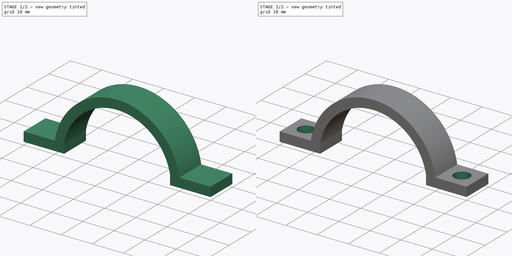
[diagram: build sequence overview — one tinted view per stage of 2, left to right]
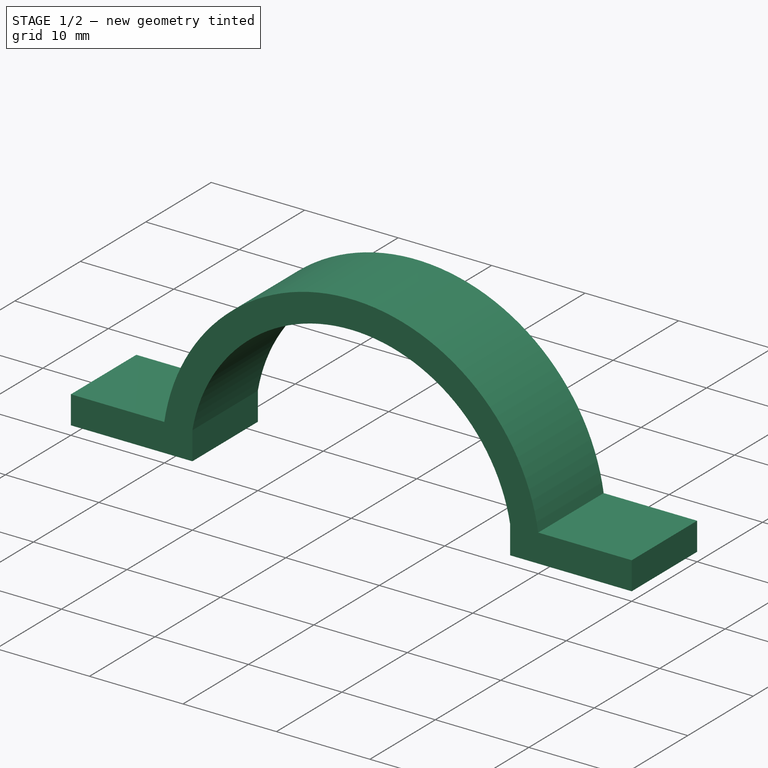
[diagram: stage 1 of 2 — iso view after this stage's code; geometry added in this stage tinted green]
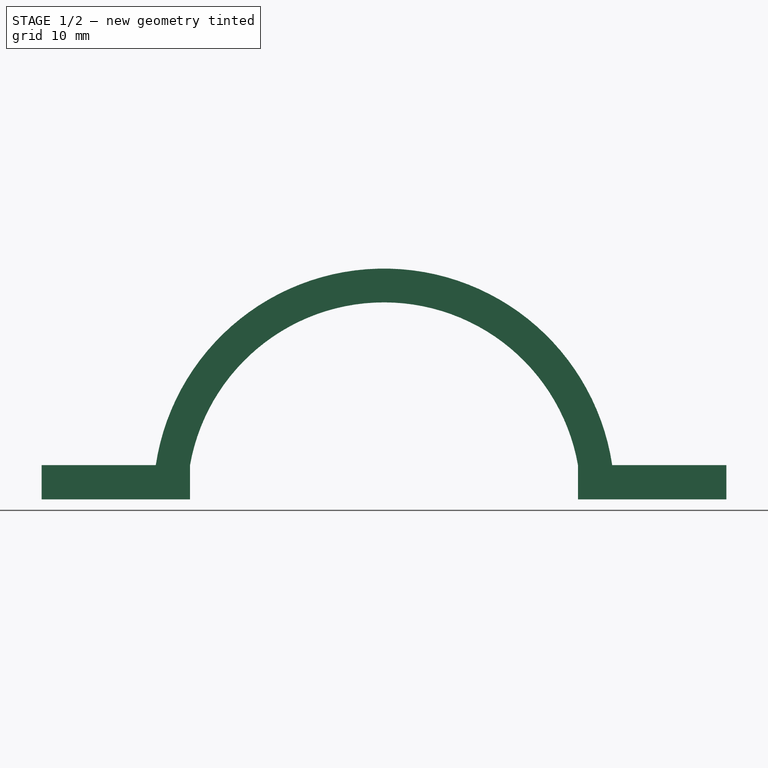
[diagram: stage 1 of 2 — front view after this stage's code; geometry added in this stage tinted green]
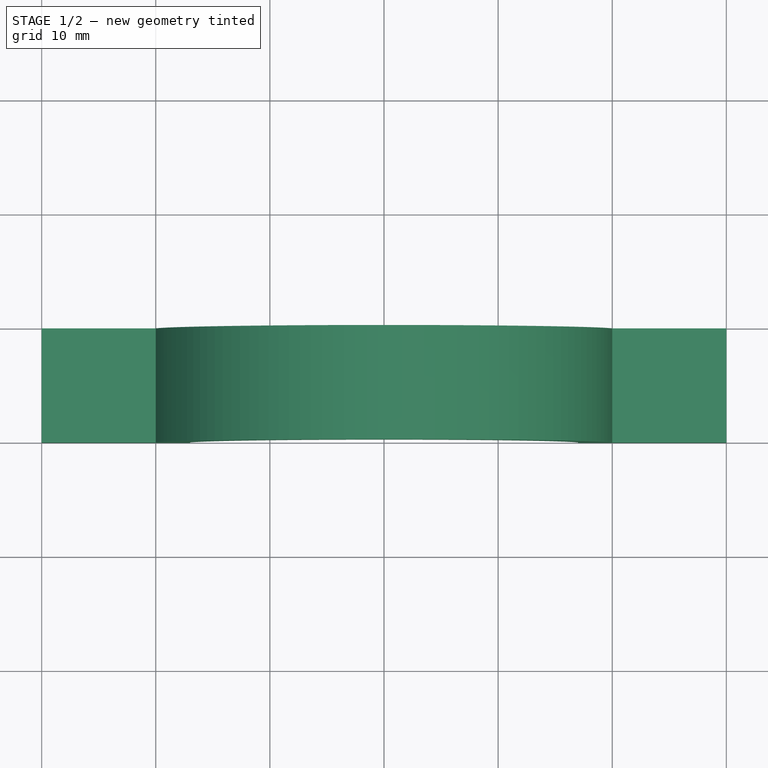
[diagram: stage 1 of 2 — top view after this stage's code; geometry added in this stage tinted green]
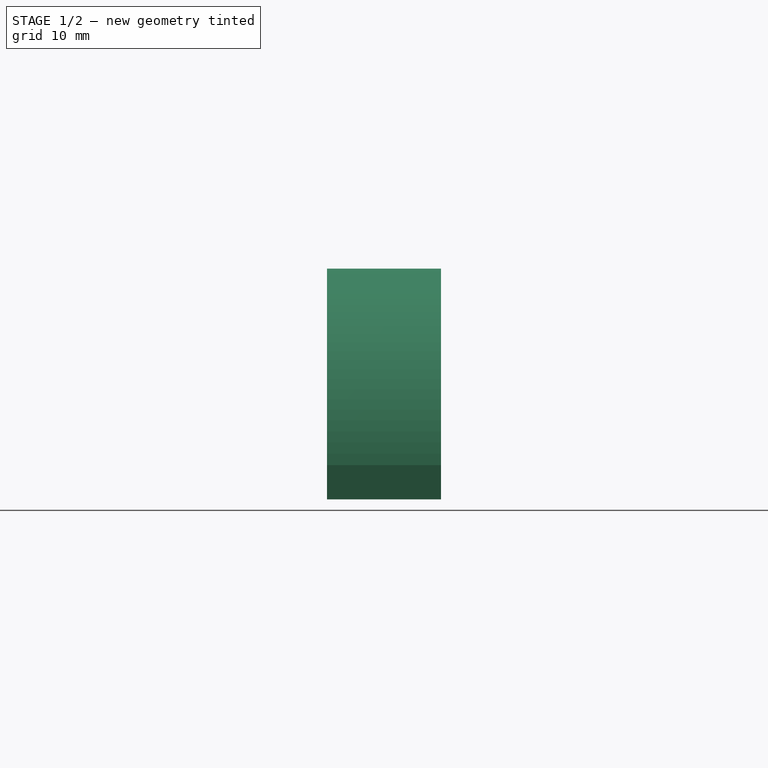
[diagram: stage 1 of 2 — right view after this stage's code; geometry added in this stage tinted green]
FCSTD DOCUMENT  (FreeCAD 0.21RUnknown)
Label: part16_clip
License: All rights reserved
LicenseURL: http://en.wikipedia.org/wiki/All_rights_reserved
objects: Sketcher::SketchObject×2, PartDesign::Pad×1, PartDesign::Pocket×1, PartDesign::CoordinateSystem×1, PartDesign::Line×1, PartDesign::Body×1
note: 9 computed .brp shape members not serialized (recipe doc carries the construction recipe); baked Part::Feature solids carry a one-line shape summary decoded from their .brp

FEATURE [Sketcher::SketchObject] Sketch
  FullyConstrained = true
  MapMode = 5
  Placement = pos=(0,0,0) rot=(1,0,0;1.5708rad)
  Support = -> [XZ_Plane]
  sketch-geometry (10):
    g0: LineSegment StartX=-30 StartY=0 StartZ=0 EndX=-17 EndY=0 EndZ=0
    g1: ArcOfCircle CenterX=0 CenterY=0 CenterZ=0 NormalX=0 NormalY=0 NormalZ=1 AngleXU=0 Radius=20.2237 StartAngle=0.14889 EndAngle=2.9927
    g2: LineSegment StartX=-30 StartY=0 StartZ=0 EndX=-30 EndY=3 EndZ=0
    g3: LineSegment StartX=-30 StartY=3 StartZ=0 EndX=-20 EndY=3 EndZ=0
    g4: LineSegment StartX=30 StartY=0 StartZ=0 EndX=30 EndY=3 EndZ=0
    g5: LineSegment StartX=30 StartY=3 StartZ=0 EndX=20 EndY=3 EndZ=0
    g6: ArcOfCircle CenterX=0 CenterY=0 CenterZ=0 NormalX=0 NormalY=0 NormalZ=1 AngleXU=0 Radius=17.2627 StartAngle=0.174672 EndAngle=2.96692
    g7: LineSegment StartX=-17 StartY=3 StartZ=0 EndX=-17 EndY=0 EndZ=0
    g8: LineSegment StartX=17 StartY=3 StartZ=0 EndX=17 EndY=0 EndZ=0
    g9: LineSegment StartX=17 StartY=0 StartZ=0 EndX=30 EndY=0 EndZ=0
  constraints (30):
    c: PointOnObject(g0,g-1)
    c: PointOnObject(g9,g-1)
    c: Coincident(g2,g3)
    c: Coincident(g3,g1)
    c: Horizontal(g3)
    c: Coincident(g9,g4)
    c: Vertical(g4)
    c: Coincident(g4,g5)
    c: Coincident(g5,g1)
    c: Vertical(g2)
    c: Horizontal(g5)
    c: Equal(g3,g5)
    c: Equal(g2,g4)
    c: Coincident(g2,g0)
    c: DistanceX(g5,g5) = 10
    c: DistanceX(g0,g9) = 60
    c: DistanceY(g0,g2) = 3
    c: Coincident(g1,g-1)
    c: Horizontal(g1,g6)
    c: Horizontal(g6,g6)
    c: Coincident(g7,g6)
    c: Coincident(g8,g6)
    c: Vertical(g8)
    c: DistanceX(g6,g1) = 3
    c: Vertical(g7)
    c: Coincident(g6,g1)
    c: Coincident(g0,g7)
    c: Coincident(g9,g8)
    c: Equal(g9,g0)
    c: PointOnObject(g0,g-1)
FEATURE [PartDesign::Pad] Pad
  Direction = (0,-1,2e-16)
  Length = 10
  Length2 = 10
  Placement = pos=(0,0,0) rot=(1,0,0;1.5708rad)
  Profile = -> Sketch
  ReferenceAxis = -> Sketch [N_Axis]
  Type = 0
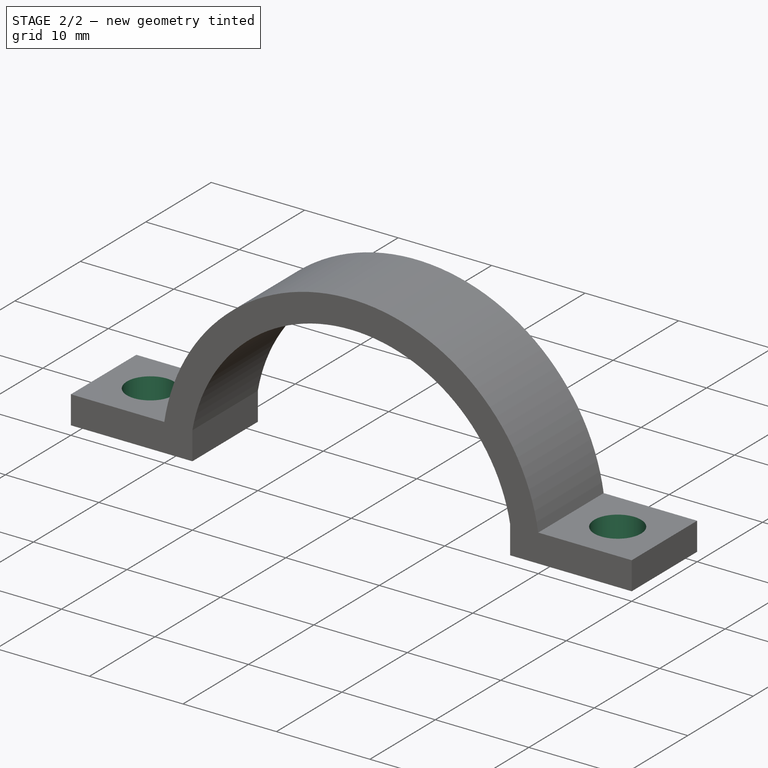
[diagram: stage 2 of 2 — iso view after this stage's code; geometry added in this stage tinted green]
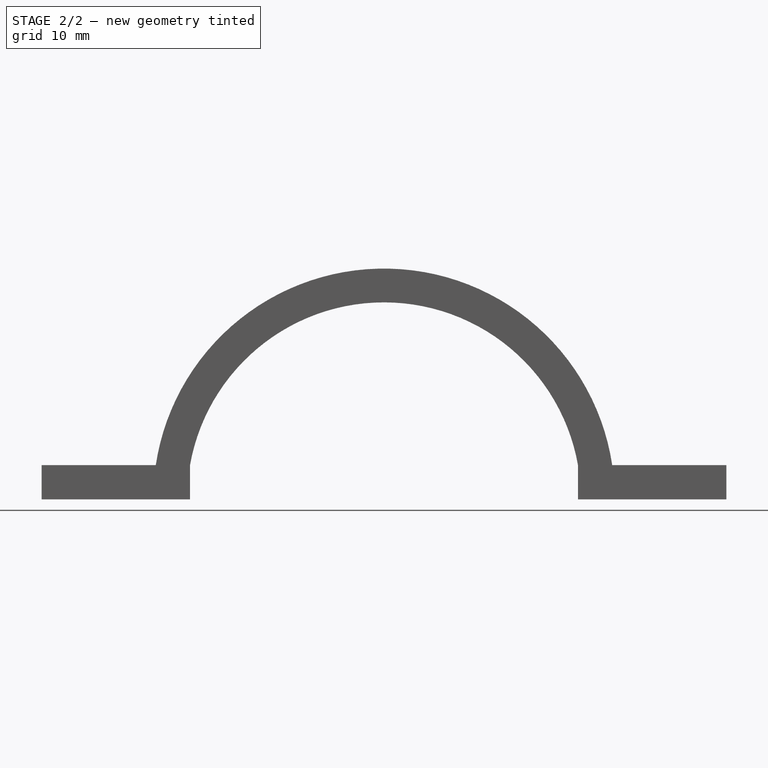
[diagram: stage 2 of 2 — front view after this stage's code; geometry added in this stage tinted green]
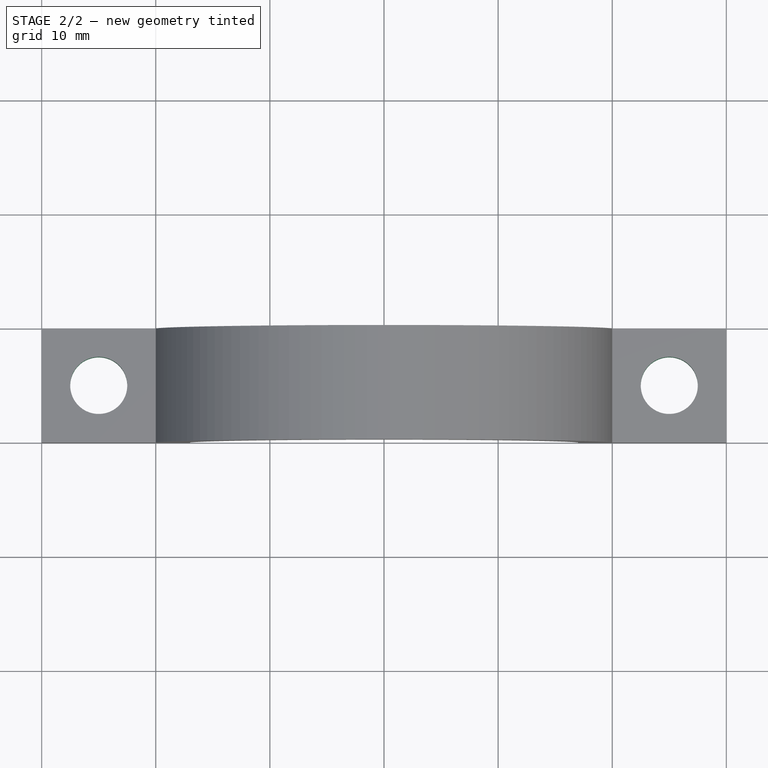
[diagram: stage 2 of 2 — top view after this stage's code; geometry added in this stage tinted green]
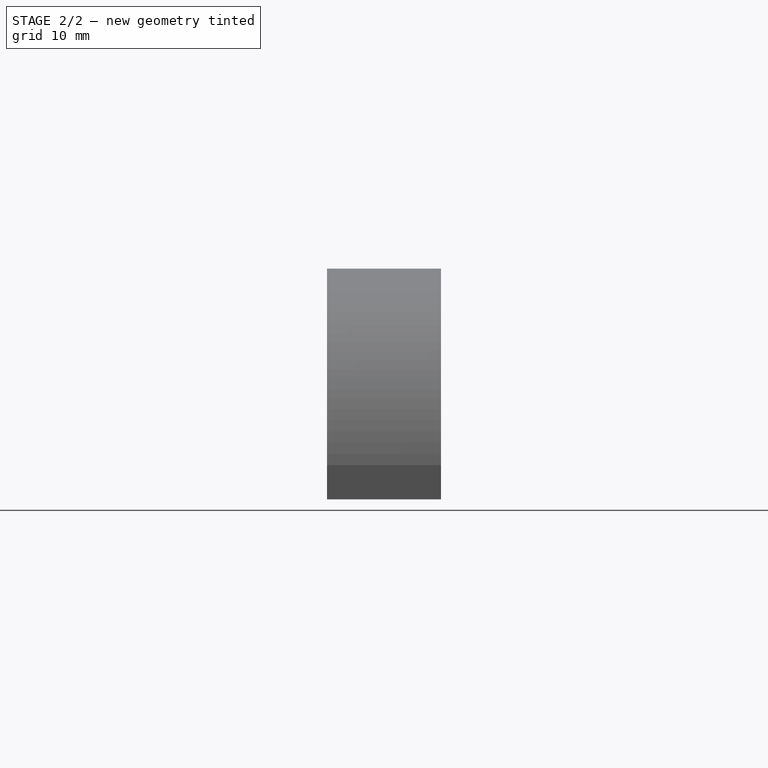
[diagram: stage 2 of 2 — right view after this stage's code; geometry added in this stage tinted green]
FEATURE [Sketcher::SketchObject] Sketch001
  ExternalGeometry = -> [Pad]
  FullyConstrained = true
  MapMode = 5
  Placement = pos=(0,2e-15,3) rot=(0,0,1;3.14159rad)
  Support = -> [Pad]
  sketch-geometry (2):
    g0: Circle CenterX=25 CenterY=5 CenterZ=0 NormalX=0 NormalY=0 NormalZ=1 AngleXU=0 Radius=2.5
    g1: Circle CenterX=-25 CenterY=5 CenterZ=0 NormalX=0 NormalY=0 NormalZ=1 AngleXU=0 Radius=2.5
  constraints (4):
    c: Symmetric(g-5,g-6,g0)
    c: Symmetric(g-4,g-3,g1)
    c: Diameter(g1) = 5
    c: Diameter(g0) = 5
FEATURE [PartDesign::Pocket] Pocket
  BaseFeature = -> Pad
  Direction = (0,-2e-16,-1)
  Length = 3
  Length2 = 5
  Placement = pos=(0,0,0) rot=(1,0,0;1.5708rad)
  Profile = -> Sketch001
  ReferenceAxis = -> Sketch001 [N_Axis]
  Type = 0
FEATURE [PartDesign::CoordinateSystem] LCS_Origin
  AttacherType = Attacher::AttachEngine3D
  Support = -> [Pocket]
FEATURE [PartDesign::Line] HoleAxis_1
  AttacherType = Attacher::AttachEngineLine
  Length = 7.04534
  MapMode = 19
  Placement = pos=(25,-5,3) rot=(0,0,1;3.14159rad)
  ResizeMode = 1
  Support = -> [Pocket]
FEATURE [PartDesign::Body] Body
  Group = -> [Sketch,Pad,Sketch001,Pocket,LCS_Origin,HoleAxis_1]
  Origin = -> Origin
  Tip = -> Pocket
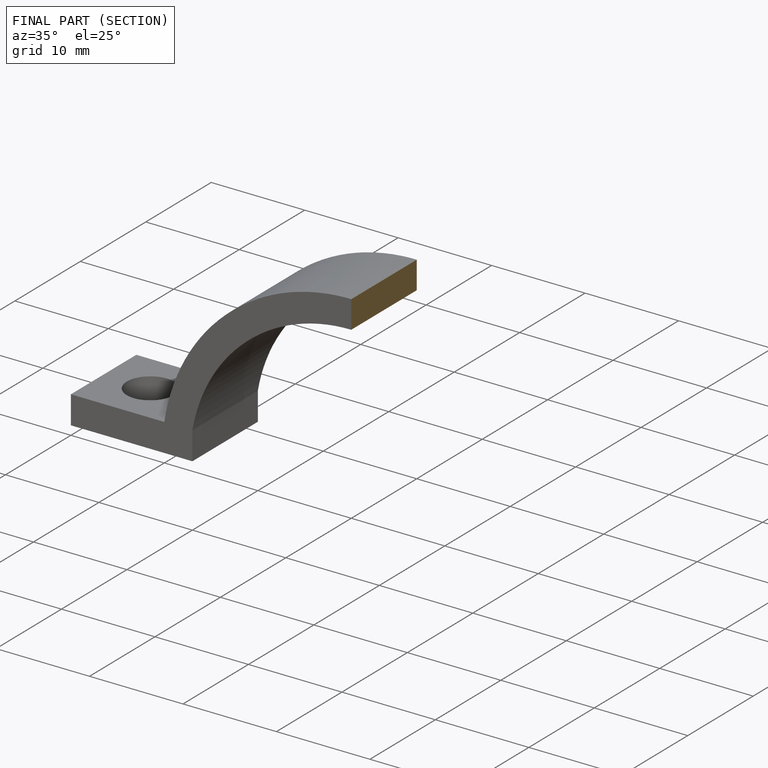
[diagram: finished part — half-section view (interior)]
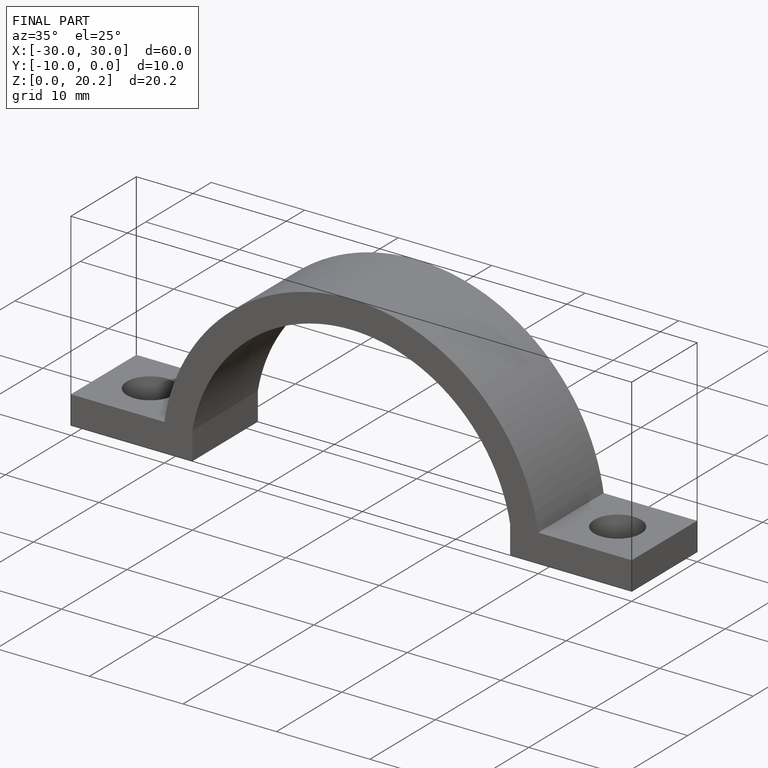
[diagram: finished part — iso view with bounding-box wireframe]
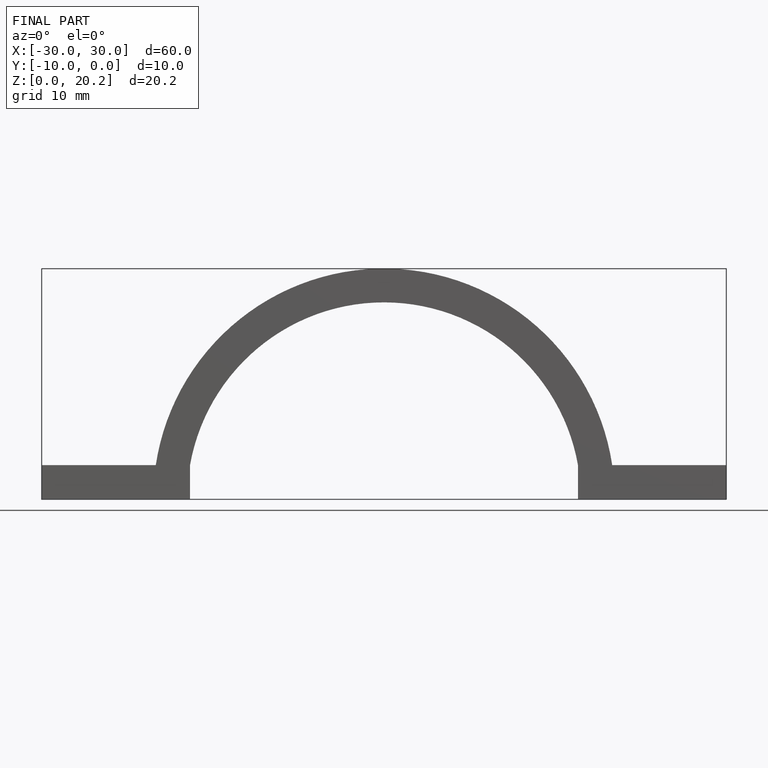
[diagram: finished part — front view with bounding-box wireframe]
